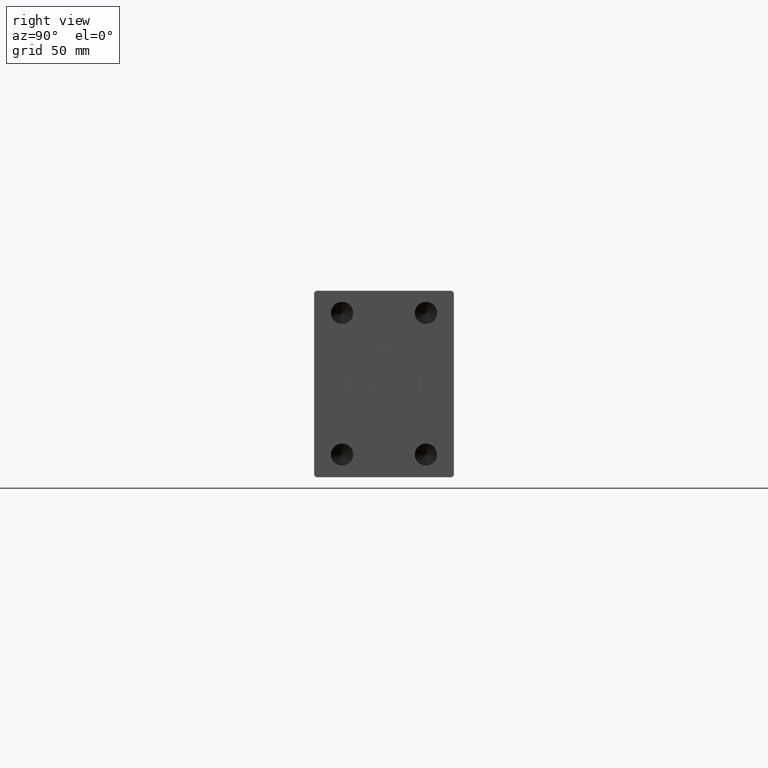
[diagram: clean part render]
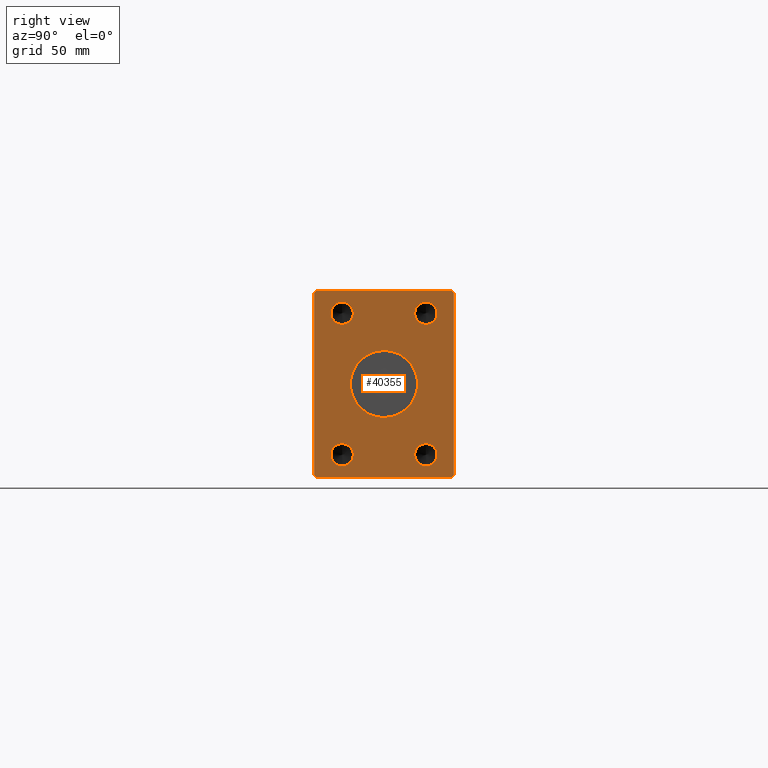
[diagram: same view with one face highlighted and labeled with its STEP entity id]
A machine part, right view. The second image highlights one B-rep face of the part: STEP entity #40355.
In plain terms, the highlighted planar face has unit normal (1, 0, 0).
Its self-contained STEP definition (entity closure, byte-faithful):
#102 = CARTESIAN_POINT ( 'NONE',  ( 332.0000000000000000, 2.204364238465235428E-15, 18.00000000000000000 ) ) ;
#320 = DIRECTION ( 'NONE',  ( 0.000000000000000000, 0.000000000000000000, -1.000000000000000000 ) ) ;
#427 = CARTESIAN_POINT ( 'NONE',  ( 332.0000000000000000, -37.50000000000001421, -49.00000000000000000 ) ) ;
#483 = CIRCLE ( 'NONE', #14030, 5.999999999999998224 ) ;
#744 = DIRECTION ( 'NONE',  ( 1.000000000000000000, -0.000000000000000000, -0.000000000000000000 ) ) ;
#758 = DIRECTION ( 'NONE',  ( 0.000000000000000000, 0.000000000000000000, -1.000000000000000000 ) ) ;
#921 = ORIENTED_EDGE ( 'NONE', *, *, #10462, .F. ) ;
#998 = CARTESIAN_POINT ( 'NONE',  ( 332.0000000000000000, -22.50000000000000000, 44.00000000000000000 ) ) ;
#1179 = DIRECTION ( 'NONE',  ( 0.000000000000000000, -0.7071067811865474617, 0.7071067811865474617 ) ) ;
#1233 = FACE_BOUND ( 'NONE', #16031, .T. ) ;
#1245 = VERTEX_POINT ( 'NONE', #427 ) ;
#1395 = CARTESIAN_POINT ( 'NONE',  ( 332.0000000000000000, -37.50000000000001421, -49.00000000000000000 ) ) ;
#1470 = EDGE_CURVE ( 'NONE', #32718, #11224, #483, .T. ) ;
#3195 = DIRECTION ( 'NONE',  ( 1.000000000000000000, -0.000000000000000000, -0.000000000000000000 ) ) ;
#3952 = DIRECTION ( 'NONE',  ( 0.000000000000000000, 0.000000000000000000, 1.000000000000000000 ) ) ;
#4030 = CARTESIAN_POINT ( 'NONE',  ( 332.0000000000000000, 36.50000000000000711, 50.00000000000000000 ) ) ;
#4195 = CIRCLE ( 'NONE', #29202, 5.999999999999998224 ) ;
#4395 = LINE ( 'NONE', #12351, #33540 ) ;
#4540 = CARTESIAN_POINT ( 'NONE',  ( 332.0000000000000000, 37.50000000000000711, 49.00000000000000000 ) ) ;
#4741 = CARTESIAN_POINT ( 'NONE',  ( 332.0000000000000000, 37.50000000000000711, -49.00000000000000000 ) ) ;
#5333 = CARTESIAN_POINT ( 'NONE',  ( 332.0000000000000000, -22.50000000000000000, -38.00000000000000711 ) ) ;
#5425 = DIRECTION ( 'NONE',  ( 0.000000000000000000, 1.000000000000000000, 0.000000000000000000 ) ) ;
#5778 = DIRECTION ( 'NONE',  ( 0.000000000000000000, 0.000000000000000000, -1.000000000000000000 ) ) ;
#5805 = AXIS2_PLACEMENT_3D ( 'NONE', #31406, #28065, #758 ) ;
#6054 = EDGE_CURVE ( 'NONE', #20097, #31741, #42012, .T. ) ;
#6555 = ORIENTED_EDGE ( 'NONE', *, *, #19757, .T. ) ;
#6638 = CIRCLE ( 'NONE', #31641, 5.999999999999998224 ) ;
#7011 = CARTESIAN_POINT ( 'NONE',  ( 332.0000000000000000, -36.50000000000000711, -50.00000000000000000 ) ) ;
#7186 = EDGE_CURVE ( 'NONE', #19068, #37868, #37460, .T. ) ;
#7782 = ORIENTED_EDGE ( 'NONE', *, *, #8565, .F. ) ;
#7833 = CARTESIAN_POINT ( 'NONE',  ( 332.0000000000000000, 22.50000000000000000, 44.00000000000000000 ) ) ;
#8002 = VERTEX_POINT ( 'NONE', #28023 ) ;
#8159 = FACE_BOUND ( 'NONE', #22149, .T. ) ;
#8532 = EDGE_CURVE ( 'NONE', #29587, #30556, #17776, .T. ) ;
#8565 = EDGE_CURVE ( 'NONE', #11224, #32718, #4195, .T. ) ;
#9292 = CIRCLE ( 'NONE', #25021, 5.999999999999998224 ) ;
#9471 = VECTOR ( 'NONE', #22659, 1000.000000000000000 ) ;
#9544 = EDGE_CURVE ( 'NONE', #14827, #19068, #4395, .T. ) ;
#10462 = EDGE_CURVE ( 'NONE', #43986, #14240, #11391, .T. ) ;
#10646 = LINE ( 'NONE', #44017, #41578 ) ;
#11096 = ORIENTED_EDGE ( 'NONE', *, *, #20414, .F. ) ;
#11224 = VERTEX_POINT ( 'NONE', #24278 ) ;
#11257 = EDGE_CURVE ( 'NONE', #19747, #29185, #41717, .T. ) ;
#11391 = CIRCLE ( 'NONE', #12079, 5.999999999999998224 ) ;
#11447 = EDGE_CURVE ( 'NONE', #30556, #29587, #29304, .T. ) ;
#12042 = ORIENTED_EDGE ( 'NONE', *, *, #1470, .F. ) ;
#12050 = AXIS2_PLACEMENT_3D ( 'NONE', #28327, #28546, #28772 ) ;
#12079 = AXIS2_PLACEMENT_3D ( 'NONE', #42728, #12272, #25956 ) ;
#12234 = ORIENTED_EDGE ( 'NONE', *, *, #18699, .T. ) ;
#12272 = DIRECTION ( 'NONE',  ( 1.000000000000000000, -0.000000000000000000, -0.000000000000000000 ) ) ;
#12345 = DIRECTION ( 'NONE',  ( 0.000000000000000000, 0.000000000000000000, -1.000000000000000000 ) ) ;
#12351 = CARTESIAN_POINT ( 'NONE',  ( 332.0000000000000000, -36.50000000000000711, -50.00000000000000000 ) ) ;
#12562 = CARTESIAN_POINT ( 'NONE',  ( 332.0000000000000000, 0.000000000000000000, 0.000000000000000000 ) ) ;
#12784 = DIRECTION ( 'NONE',  ( 1.000000000000000000, 0.000000000000000000, 0.000000000000000000 ) ) ;
#12788 = CARTESIAN_POINT ( 'NONE',  ( 332.0000000000000000, -37.50000000000001421, 48.99999999999998579 ) ) ;
#12794 = CARTESIAN_POINT ( 'NONE',  ( 332.0000000000000000, 22.50000000000000000, -38.00000000000000000 ) ) ;
#12959 = CARTESIAN_POINT ( 'NONE',  ( 332.0000000000000000, 22.50000000000000000, -32.00000000000000000 ) ) ;
#13418 = AXIS2_PLACEMENT_3D ( 'NONE', #21841, #43097, #39745 ) ;
#14030 = AXIS2_PLACEMENT_3D ( 'NONE', #31182, #744, #320 ) ;
#14064 = EDGE_LOOP ( 'NONE', ( #36134, #34108, #12234, #6555, #44010, #28516, #17491, #25909 ) ) ;
#14240 = VERTEX_POINT ( 'NONE', #37138 ) ;
#14731 = DIRECTION ( 'NONE',  ( 0.000000000000000000, -1.000000000000000000, -1.901066822988281457E-16 ) ) ;
#14827 = VERTEX_POINT ( 'NONE', #7011 ) ;
#14867 = FACE_BOUND ( 'NONE', #33953, .T. ) ;
#14925 = ORIENTED_EDGE ( 'NONE', *, *, #8532, .F. ) ;
#15058 = CIRCLE ( 'NONE', #25785, 5.999999999999998224 ) ;
#15164 = ORIENTED_EDGE ( 'NONE', *, *, #31332, .F. ) ;
#16031 = EDGE_LOOP ( 'NONE', ( #14925, #28611 ) ) ;
#17491 = ORIENTED_EDGE ( 'NONE', *, *, #7186, .T. ) ;
#17776 = CIRCLE ( 'NONE', #44236, 18.00000000000000000 ) ;
#18073 = ORIENTED_EDGE ( 'NONE', *, *, #18328, .F. ) ;
#18328 = EDGE_CURVE ( 'NONE', #8002, #28177, #15058, .T. ) ;
#18699 = EDGE_CURVE ( 'NONE', #20562, #21012, #37248, .T. ) ;
#19068 = VERTEX_POINT ( 'NONE', #31567 ) ;
#19747 = VERTEX_POINT ( 'NONE', #39222 ) ;
#19757 = EDGE_CURVE ( 'NONE', #21012, #1245, #42783, .T. ) ;
#20023 = AXIS2_PLACEMENT_3D ( 'NONE', #12562, #12784, #26239 ) ;
#20097 = VERTEX_POINT ( 'NONE', #23279 ) ;
#20414 = EDGE_CURVE ( 'NONE', #31741, #20097, #6638, .T. ) ;
#20437 = CARTESIAN_POINT ( 'NONE',  ( 332.0000000000000000, 36.50000000000000711, -50.00000000000000000 ) ) ;
#20562 = VERTEX_POINT ( 'NONE', #32118 ) ;
#20846 = CARTESIAN_POINT ( 'NONE',  ( 332.0000000000000000, -22.50000000000000000, -32.00000000000000711 ) ) ;
#21012 = VERTEX_POINT ( 'NONE', #12788 ) ;
#21841 = CARTESIAN_POINT ( 'NONE',  ( 332.0000000000000000, 22.50000000000000000, 38.00000000000000000 ) ) ;
#22146 = VECTOR ( 'NONE', #1179, 1000.000000000000114 ) ;
#22149 = EDGE_LOOP ( 'NONE', ( #38947, #11096 ) ) ;
#22440 = LINE ( 'NONE', #1395, #39238 ) ;
#22659 = DIRECTION ( 'NONE',  ( 0.000000000000000000, 0.000000000000000000, -1.000000000000000000 ) ) ;
#23279 = CARTESIAN_POINT ( 'NONE',  ( 332.0000000000000000, 22.50000000000000000, 32.00000000000000000 ) ) ;
#24278 = CARTESIAN_POINT ( 'NONE',  ( 332.0000000000000000, 22.50000000000000000, -44.00000000000000000 ) ) ;
#24966 = PLANE ( 'NONE',  #12050 ) ;
#25021 = AXIS2_PLACEMENT_3D ( 'NONE', #25150, #42379, #38818 ) ;
#25150 = CARTESIAN_POINT ( 'NONE',  ( 332.0000000000000000, -22.50000000000000000, 38.00000000000000000 ) ) ;
#25183 = FACE_BOUND ( 'NONE', #27133, .T. ) ;
#25550 = EDGE_LOOP ( 'NONE', ( #26587, #921 ) ) ;
#25785 = AXIS2_PLACEMENT_3D ( 'NONE', #5333, #25932, #5778 ) ;
#25909 = ORIENTED_EDGE ( 'NONE', *, *, #32079, .T. ) ;
#25932 = DIRECTION ( 'NONE',  ( 1.000000000000000000, -0.000000000000000000, -0.000000000000000000 ) ) ;
#25956 = DIRECTION ( 'NONE',  ( 0.000000000000000000, 0.000000000000000000, -1.000000000000000000 ) ) ;
#26126 = DIRECTION ( 'NONE',  ( 0.000000000000000000, 0.000000000000000000, -1.000000000000000000 ) ) ;
#26239 = DIRECTION ( 'NONE',  ( 0.000000000000000000, 0.000000000000000000, -1.000000000000000000 ) ) ;
#26350 = DIRECTION ( 'NONE',  ( 1.000000000000000000, -0.000000000000000000, -0.000000000000000000 ) ) ;
#26476 = DIRECTION ( 'NONE',  ( 0.000000000000000000, 0.000000000000000000, -1.000000000000000000 ) ) ;
#26587 = ORIENTED_EDGE ( 'NONE', *, *, #43960, .F. ) ;
#27091 = EDGE_CURVE ( 'NONE', #29185, #20562, #34707, .T. ) ;
#27133 = EDGE_LOOP ( 'NONE', ( #7782, #12042 ) ) ;
#28023 = CARTESIAN_POINT ( 'NONE',  ( 332.0000000000000000, -22.50000000000000000, -44.00000000000000711 ) ) ;
#28065 = DIRECTION ( 'NONE',  ( 1.000000000000000000, -0.000000000000000000, -0.000000000000000000 ) ) ;
#28177 = VERTEX_POINT ( 'NONE', #20846 ) ;
#28327 = CARTESIAN_POINT ( 'NONE',  ( 332.0000000000000000, 0.000000000000000000, 0.000000000000000000 ) ) ;
#28516 = ORIENTED_EDGE ( 'NONE', *, *, #9544, .T. ) ;
#28546 = DIRECTION ( 'NONE',  ( 1.000000000000000000, 0.000000000000000000, 0.000000000000000000 ) ) ;
#28611 = ORIENTED_EDGE ( 'NONE', *, *, #11447, .F. ) ;
#28772 = DIRECTION ( 'NONE',  ( 0.000000000000000000, 0.000000000000000000, -1.000000000000000000 ) ) ;
#29185 = VERTEX_POINT ( 'NONE', #35773 ) ;
#29202 = AXIS2_PLACEMENT_3D ( 'NONE', #12794, #3195, #26476 ) ;
#29304 = CIRCLE ( 'NONE', #20023, 18.00000000000000000 ) ;
#29384 = CARTESIAN_POINT ( 'NONE',  ( 332.0000000000000000, 0.000000000000000000, 0.000000000000000000 ) ) ;
#29587 = VERTEX_POINT ( 'NONE', #32703 ) ;
#30556 = VERTEX_POINT ( 'NONE', #102 ) ;
#31182 = CARTESIAN_POINT ( 'NONE',  ( 332.0000000000000000, 22.50000000000000000, -38.00000000000000000 ) ) ;
#31332 = EDGE_CURVE ( 'NONE', #28177, #8002, #40840, .T. ) ;
#31406 = CARTESIAN_POINT ( 'NONE',  ( 332.0000000000000000, -22.50000000000000000, -38.00000000000000711 ) ) ;
#31567 = CARTESIAN_POINT ( 'NONE',  ( 332.0000000000000000, 36.50000000000000711, -50.00000000000000000 ) ) ;
#31641 = AXIS2_PLACEMENT_3D ( 'NONE', #42899, #26350, #26126 ) ;
#31741 = VERTEX_POINT ( 'NONE', #7833 ) ;
#32079 = EDGE_CURVE ( 'NONE', #37868, #19747, #10646, .T. ) ;
#32118 = CARTESIAN_POINT ( 'NONE',  ( 332.0000000000000000, -36.50000000000001421, 49.99999999999998579 ) ) ;
#32297 = DIRECTION ( 'NONE',  ( 1.000000000000000000, 0.000000000000000000, 0.000000000000000000 ) ) ;
#32703 = CARTESIAN_POINT ( 'NONE',  ( 332.0000000000000000, 0.000000000000000000, -18.00000000000000000 ) ) ;
#32718 = VERTEX_POINT ( 'NONE', #12959 ) ;
#33540 = VECTOR ( 'NONE', #5425, 1000.000000000000000 ) ;
#33664 = VECTOR ( 'NONE', #40604, 1000.000000000000114 ) ;
#33953 = EDGE_LOOP ( 'NONE', ( #18073, #15164 ) ) ;
#34093 = DIRECTION ( 'NONE',  ( 0.000000000000000000, 0.7071067811865474617, 0.7071067811865474617 ) ) ;
#34108 = ORIENTED_EDGE ( 'NONE', *, *, #27091, .T. ) ;
#34707 = LINE ( 'NONE', #4030, #37393 ) ;
#35773 = CARTESIAN_POINT ( 'NONE',  ( 332.0000000000000000, 36.50000000000000711, 50.00000000000000000 ) ) ;
#36134 = ORIENTED_EDGE ( 'NONE', *, *, #11257, .T. ) ;
#37138 = CARTESIAN_POINT ( 'NONE',  ( 332.0000000000000000, -22.50000000000000000, 32.00000000000000000 ) ) ;
#37248 = LINE ( 'NONE', #40823, #33664 ) ;
#37393 = VECTOR ( 'NONE', #14731, 1000.000000000000000 ) ;
#37460 = LINE ( 'NONE', #20437, #44200 ) ;
#37868 = VERTEX_POINT ( 'NONE', #4741 ) ;
#38818 = DIRECTION ( 'NONE',  ( 0.000000000000000000, 0.000000000000000000, -1.000000000000000000 ) ) ;
#38849 = FACE_BOUND ( 'NONE', #25550, .T. ) ;
#38947 = ORIENTED_EDGE ( 'NONE', *, *, #6054, .F. ) ;
#39005 = DIRECTION ( 'NONE',  ( 0.000000000000000000, 0.7071067811865500152, -0.7071067811865451302 ) ) ;
#39222 = CARTESIAN_POINT ( 'NONE',  ( 332.0000000000000000, 37.50000000000000711, 49.00000000000000000 ) ) ;
#39238 = VECTOR ( 'NONE', #39005, 1000.000000000000114 ) ;
#39473 = EDGE_CURVE ( 'NONE', #1245, #14827, #22440, .T. ) ;
#39745 = DIRECTION ( 'NONE',  ( 0.000000000000000000, 0.000000000000000000, -1.000000000000000000 ) ) ;
#40355 = ADVANCED_FACE ( 'NONE', ( #1233, #8159, #14867, #25183, #38849, #42412 ), #24966, .T. ) ;
#40604 = DIRECTION ( 'NONE',  ( 0.000000000000000000, -0.7071067811865474617, -0.7071067811865474617 ) ) ;
#40823 = CARTESIAN_POINT ( 'NONE',  ( 332.0000000000000000, -36.50000000000001421, 49.99999999999998579 ) ) ;
#40840 = CIRCLE ( 'NONE', #5805, 5.999999999999998224 ) ;
#41578 = VECTOR ( 'NONE', #3952, 1000.000000000000000 ) ;
#41717 = LINE ( 'NONE', #4540, #22146 ) ;
#42012 = CIRCLE ( 'NONE', #13418, 5.999999999999998224 ) ;
#42379 = DIRECTION ( 'NONE',  ( 1.000000000000000000, -0.000000000000000000, -0.000000000000000000 ) ) ;
#42412 = FACE_OUTER_BOUND ( 'NONE', #14064, .T. ) ;
#42568 = CARTESIAN_POINT ( 'NONE',  ( 332.0000000000000000, -37.50000000000001421, 48.99999999999998579 ) ) ;
#42728 = CARTESIAN_POINT ( 'NONE',  ( 332.0000000000000000, -22.50000000000000000, 38.00000000000000000 ) ) ;
#42783 = LINE ( 'NONE', #42568, #9471 ) ;
#42899 = CARTESIAN_POINT ( 'NONE',  ( 332.0000000000000000, 22.50000000000000000, 38.00000000000000000 ) ) ;
#43097 = DIRECTION ( 'NONE',  ( 1.000000000000000000, -0.000000000000000000, -0.000000000000000000 ) ) ;
#43960 = EDGE_CURVE ( 'NONE', #14240, #43986, #9292, .T. ) ;
#43986 = VERTEX_POINT ( 'NONE', #998 ) ;
#44010 = ORIENTED_EDGE ( 'NONE', *, *, #39473, .T. ) ;
#44017 = CARTESIAN_POINT ( 'NONE',  ( 332.0000000000000000, 37.50000000000000711, -49.00000000000000000 ) ) ;
#44200 = VECTOR ( 'NONE', #34093, 1000.000000000000114 ) ;
#44236 = AXIS2_PLACEMENT_3D ( 'NONE', #29384, #32297, #12345 ) ;